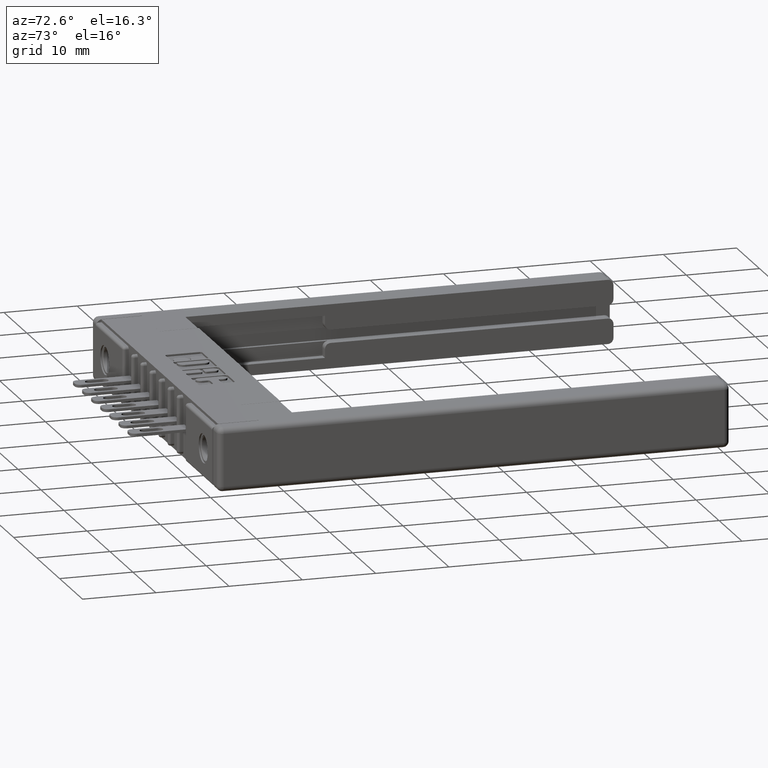
[diagram: clean part render]
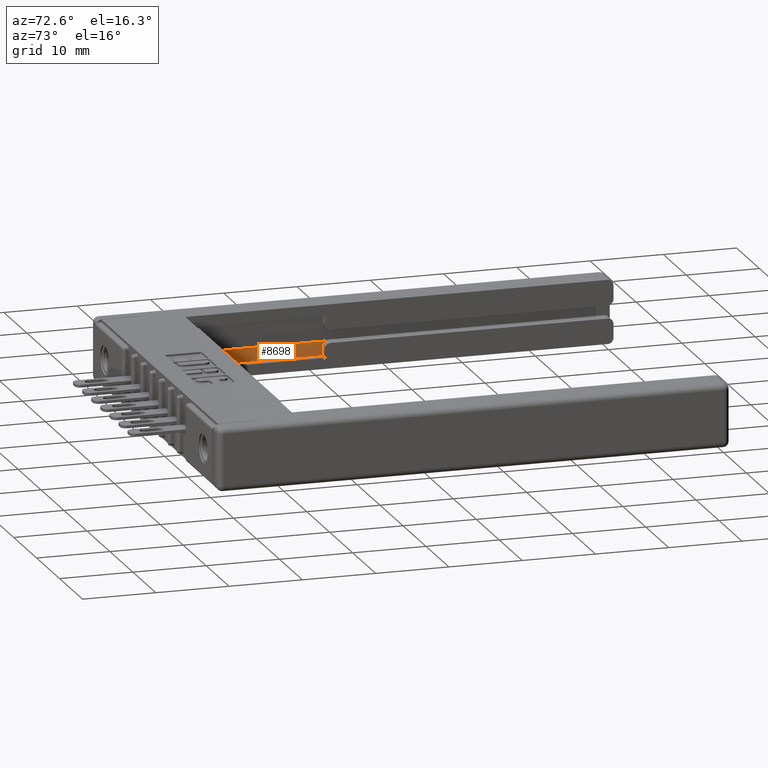
[diagram: same view with one face highlighted and labeled with its STEP entity id]
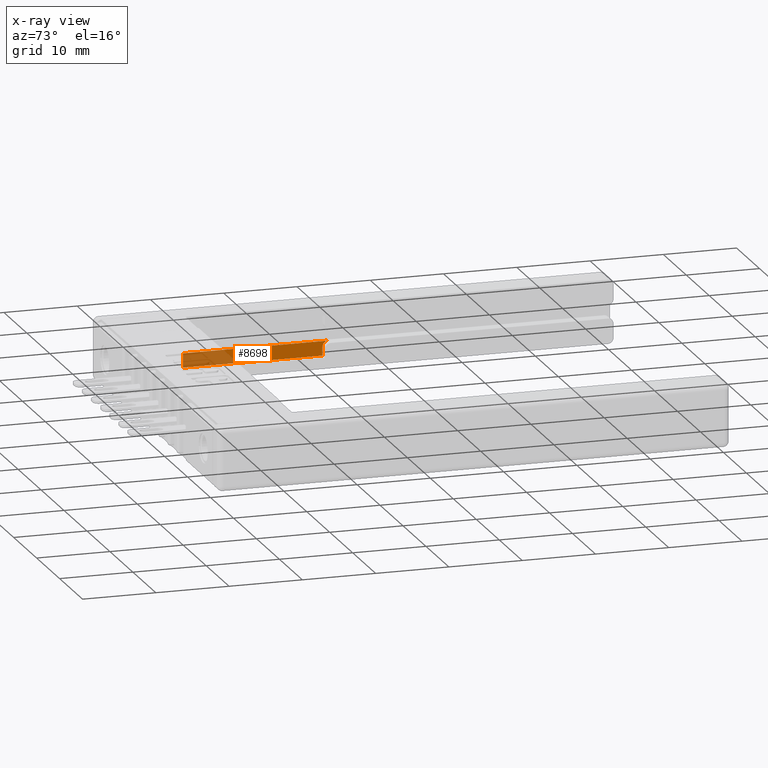
[diagram: x-ray of the same camera — body ghosted, the highlighted face saturated]
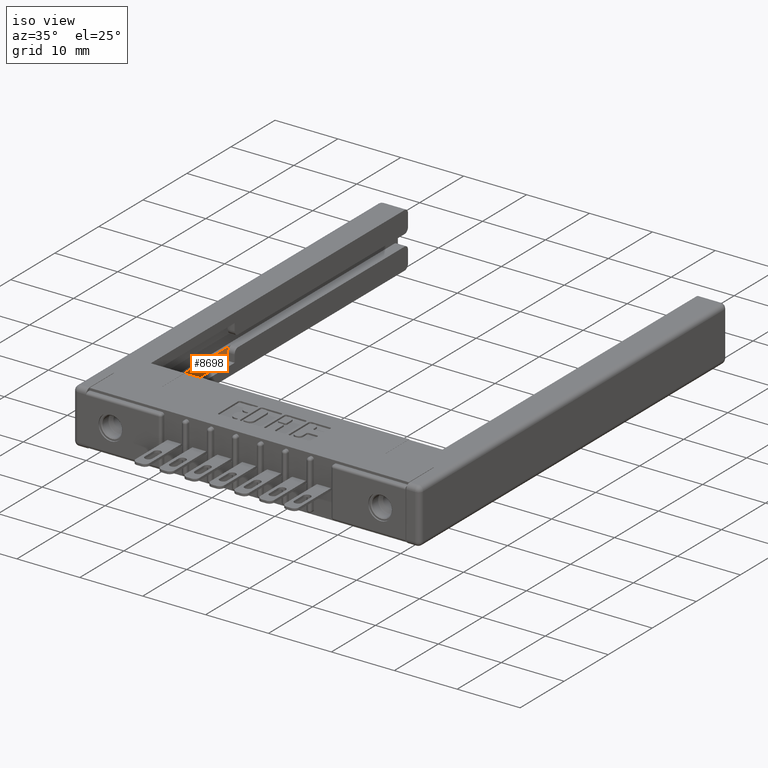
[diagram: same view with one face highlighted and labeled with its STEP entity id]
A machine part, auxiliary view. The second image highlights one B-rep face of the part: STEP entity #8698.
The next image is the same camera in x-ray: the body ghosted, the highlighted face saturated — about 34% of this face is hidden behind the body in this view.
A second angle (iso view) of the same face is appended — the face is thin or edge-on in the first view.
In plain terms, the highlighted planar face has unit normal (-1, -0, 0).
Its self-contained STEP definition (entity closure, byte-faithful):
#318 = ORIENTED_EDGE ( 'NONE', *, *, #13136, .T. ) ;
#399 = LINE ( 'NONE', #5681, #8478 ) ;
#1028 = DIRECTION ( 'NONE',  ( -0.0000000000000000000, -0.0000000000000000000, 1.000000000000000000 ) ) ;
#1406 = CIRCLE ( 'NONE', #3405, 0.02999999999999995400 ) ;
#1616 = DIRECTION ( 'NONE',  ( 1.365923996832131600E-016, -1.000000000000000000, 0.0000000000000000000 ) ) ;
#1673 = CARTESIAN_POINT ( 'NONE',  ( 0.1289999999999999800, 0.4499999999999999600, -0.2839999999999999200 ) ) ;
#2846 = CARTESIAN_POINT ( 'NONE',  ( 0.1289999999999998600, 1.230000000000000000, -0.2370000000000001000 ) ) ;
#3129 = CARTESIAN_POINT ( 'NONE',  ( 0.1289999999999999800, 0.4499999999999999600, -0.2070000000000000700 ) ) ;
#3287 = VERTEX_POINT ( 'NONE', #9332 ) ;
#3405 = AXIS2_PLACEMENT_3D ( 'NONE', #2846, #11482, #13670 ) ;
#3443 = VERTEX_POINT ( 'NONE', #5132 ) ;
#3895 = AXIS2_PLACEMENT_3D ( 'NONE', #5737, #13527, #1616 ) ;
#4328 = EDGE_CURVE ( 'NONE', #8709, #3443, #5000, .T. ) ;
#4457 = ORIENTED_EDGE ( 'NONE', *, *, #12594, .T. ) ;
#5000 = LINE ( 'NONE', #13286, #9927 ) ;
#5132 = CARTESIAN_POINT ( 'NONE',  ( 0.1289999999999998600, 1.200000000000000000, -0.2839999999999999200 ) ) ;
#5553 = DIRECTION ( 'NONE',  ( -1.365923996832131600E-016, 1.000000000000000000, 0.0000000000000000000 ) ) ;
#5560 = LINE ( 'NONE', #7435, #5900 ) ;
#5623 = DIRECTION ( 'NONE',  ( -1.365923996832131600E-016, 1.000000000000000000, -4.454099989669995000E-017 ) ) ;
#5681 = CARTESIAN_POINT ( 'NONE',  ( 0.1289999999999999800, 0.4500000000000001200, -0.2070000000000000700 ) ) ;
#5737 = CARTESIAN_POINT ( 'NONE',  ( 0.1289999999999998600, 1.200000000000000000, -0.2839999999999999200 ) ) ;
#5900 = VECTOR ( 'NONE', #1028, 39.37007874015748100 ) ;
#7435 = CARTESIAN_POINT ( 'NONE',  ( 0.1289999999999998600, 1.200000000000000000, -0.05899999999999993400 ) ) ;
#7464 = EDGE_LOOP ( 'NONE', ( #7696, #9081, #4457, #318, #12747 ) ) ;
#7696 = ORIENTED_EDGE ( 'NONE', *, *, #11687, .T. ) ;
#7984 = VECTOR ( 'NONE', #11269, 39.37007874015748100 ) ;
#8478 = VECTOR ( 'NONE', #5623, 39.37007874015748100 ) ;
#8664 = VERTEX_POINT ( 'NONE', #13378 ) ;
#8698 = ADVANCED_FACE ( 'NONE', ( #10627 ), #9052, .F. ) ;
#8709 = VERTEX_POINT ( 'NONE', #1673 ) ;
#8955 = CARTESIAN_POINT ( 'NONE',  ( 0.1289999999999999800, 0.4499999999999999600, -0.05899999999999993400 ) ) ;
#9052 = PLANE ( 'NONE',  #3895 ) ;
#9081 = ORIENTED_EDGE ( 'NONE', *, *, #4328, .T. ) ;
#9332 = CARTESIAN_POINT ( 'NONE',  ( 0.1289999999999998600, 1.230000000000000000, -0.2070000000000001000 ) ) ;
#9851 = LINE ( 'NONE', #8955, #7984 ) ;
#9927 = VECTOR ( 'NONE', #5553, 39.37007874015748100 ) ;
#10627 = FACE_OUTER_BOUND ( 'NONE', #7464, .T. ) ;
#11269 = DIRECTION ( 'NONE',  ( 0.0000000000000000000, 0.0000000000000000000, -1.000000000000000000 ) ) ;
#11482 = DIRECTION ( 'NONE',  ( -1.000000000000000000, -1.365923996832131600E-016, -0.0000000000000000000 ) ) ;
#11687 = EDGE_CURVE ( 'NONE', #12117, #8709, #9851, .T. ) ;
#12117 = VERTEX_POINT ( 'NONE', #3129 ) ;
#12159 = EDGE_CURVE ( 'NONE', #12117, #3287, #399, .T. ) ;
#12594 = EDGE_CURVE ( 'NONE', #3443, #8664, #5560, .T. ) ;
#12747 = ORIENTED_EDGE ( 'NONE', *, *, #12159, .F. ) ;
#13136 = EDGE_CURVE ( 'NONE', #8664, #3287, #1406, .T. ) ;
#13286 = CARTESIAN_POINT ( 'NONE',  ( 0.1289999999999999800, 0.4499999999999999600, -0.2839999999999999200 ) ) ;
#13378 = CARTESIAN_POINT ( 'NONE',  ( 0.1289999999999998600, 1.200000000000000000, -0.2370000000000001000 ) ) ;
#13527 = DIRECTION ( 'NONE',  ( -1.000000000000000000, -1.365923996832131600E-016, 0.0000000000000000000 ) ) ;
#13670 = DIRECTION ( 'NONE',  ( 0.0000000000000000000, -1.000000000000000000, 0.0000000000000000000 ) ) ;